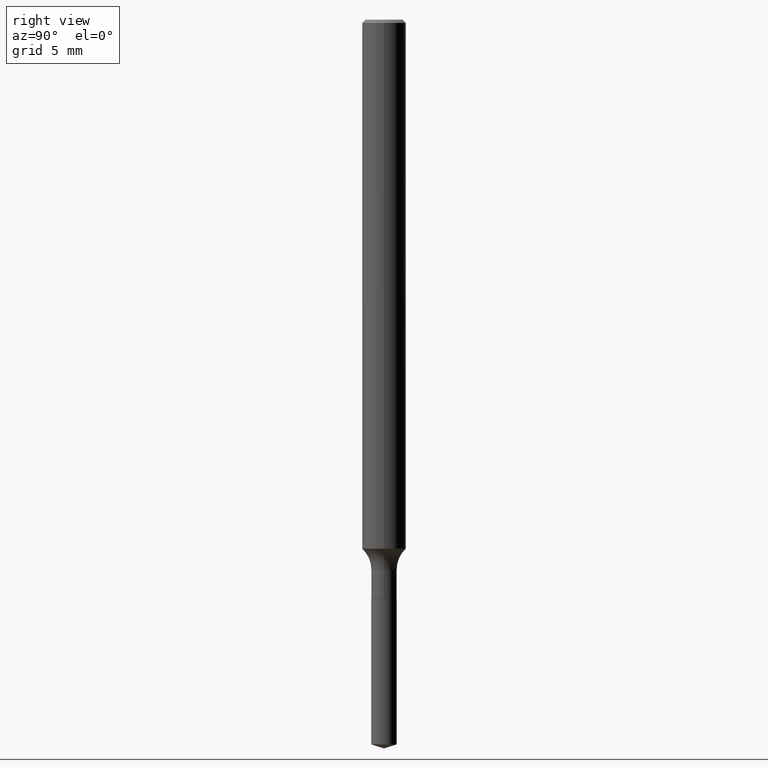
[diagram: clean part render]
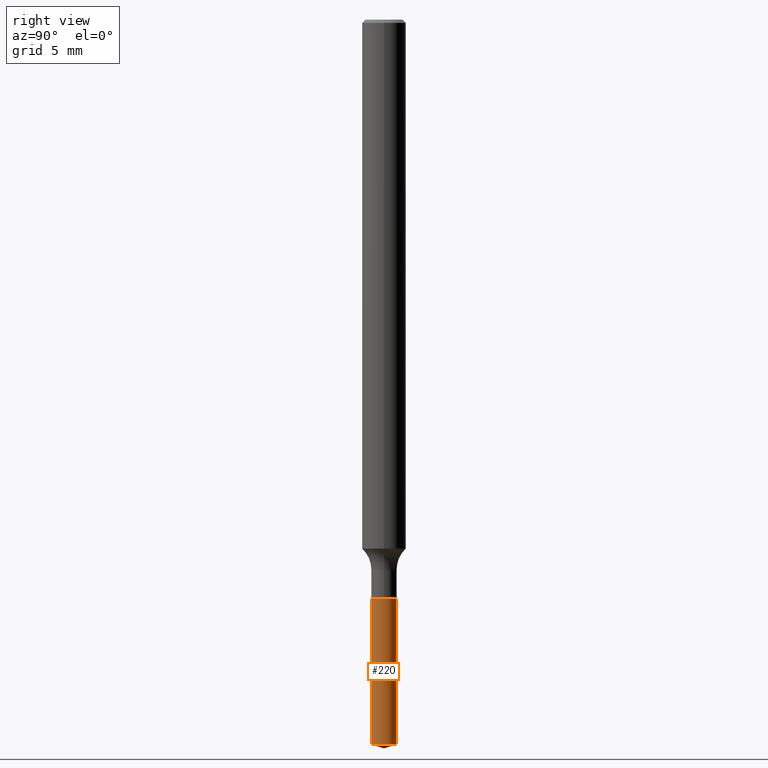
[diagram: same view with one face highlighted and labeled with its STEP entity id]
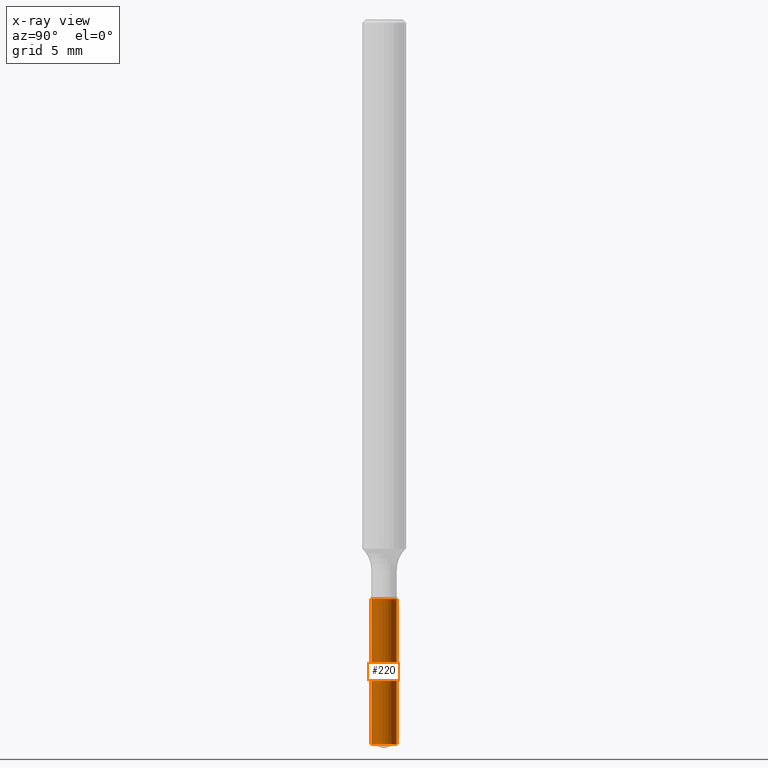
[diagram: x-ray of the same camera — body ghosted, the highlighted face saturated]
A machine part, right view. The second image highlights one B-rep face of the part: STEP entity #220.
The next image is the same camera in x-ray: the body ghosted, the highlighted face saturated — about 0% of this face is hidden behind the body in this view.
In plain terms, the highlighted cylindrical surface (edge-blend (fillet) strip) has radius 0.875 mm, axis along (-0, 0, 1).
Its self-contained STEP definition (entity closure, byte-faithful):
#9 = VECTOR ( 'NONE', #287, 39.37007874015748143 ) ;
#11 = CARTESIAN_POINT ( 'NONE',  ( 4.787417008235043521E-29, -6.834949775661315116E-15, -1.957637956723118799 ) ) ;
#18 = AXIS2_PLACEMENT_3D ( 'NONE', #156, #75, #81 ) ;
#25 = LINE ( 'NONE', #439, #9 ) ;
#30 = EDGE_CURVE ( 'NONE', #69, #360, #54, .T. ) ;
#34 = CARTESIAN_POINT ( 'NONE',  ( 2.447819724694024477E-16, 0.03444999999999454054, -1.565000000000000169 ) ) ;
#52 = DIRECTION ( 'NONE',  ( -2.445658424288464479E-29, 3.491209794926788011E-15, 1.000000000000000000 ) ) ;
#54 = CIRCLE ( 'NONE', #478, 0.03445000000000000145 ) ;
#61 = AXIS2_PLACEMENT_3D ( 'NONE', #362, #174, #65 ) ;
#65 = DIRECTION ( 'NONE',  ( -6.982962677686265922E-15, -1.000000000000000000, 0.000000000000000000 ) ) ;
#69 = VERTEX_POINT ( 'NONE', #141 ) ;
#75 = DIRECTION ( 'NONE',  ( -2.445658424288464479E-29, 3.491209794926788011E-15, 1.000000000000000000 ) ) ;
#81 = DIRECTION ( 'NONE',  ( -6.982962677686265922E-15, -1.000000000000000000, 0.000000000000000000 ) ) ;
#89 = EDGE_LOOP ( 'NONE', ( #468, #488, #423, #198 ) ) ;
#99 = CARTESIAN_POINT ( 'NONE',  ( -2.405630642462536095E-16, -0.03445000000000546930, -1.565000000000000169 ) ) ;
#101 = FACE_OUTER_BOUND ( 'NONE', #89, .T. ) ;
#130 = EDGE_CURVE ( 'NONE', #160, #405, #286, .T. ) ;
#141 = CARTESIAN_POINT ( 'NONE',  ( -2.405630642462439459E-16, -0.03445000000000683626, -1.957637956723118799 ) ) ;
#156 = CARTESIAN_POINT ( 'NONE',  ( 3.827158681679738819E-29, -5.464168295289523107E-15, -1.565000000000000169 ) ) ;
#160 = VERTEX_POINT ( 'NONE', #490 ) ;
#174 = DIRECTION ( 'NONE',  ( -2.445658424288464479E-29, 3.491209794926788011E-15, 1.000000000000000000 ) ) ;
#194 = DIRECTION ( 'NONE',  ( -6.982962677686265922E-15, -1.000000000000000000, 0.000000000000000000 ) ) ;
#198 = ORIENTED_EDGE ( 'NONE', *, *, #361, .F. ) ;
#220 = ADVANCED_FACE ( 'NONE', ( #101 ), #248, .T. ) ;
#240 = DIRECTION ( 'NONE',  ( -2.445658424288464479E-29, 3.491209794926788011E-15, 1.000000000000000000 ) ) ;
#248 = CYLINDRICAL_SURFACE ( 'NONE', #61, 0.03445000000000000145 ) ;
#286 = CIRCLE ( 'NONE', #18, 0.03445000000000000145 ) ;
#287 = DIRECTION ( 'NONE',  ( -2.445658424288464479E-29, 3.491209794926788011E-15, 1.000000000000000000 ) ) ;
#324 = EDGE_CURVE ( 'NONE', #360, #405, #25, .T. ) ;
#360 = VERTEX_POINT ( 'NONE', #399 ) ;
#361 = EDGE_CURVE ( 'NONE', #69, #160, #428, .T. ) ;
#362 = CARTESIAN_POINT ( 'NONE',  ( 3.827158681679738819E-29, -5.464168295289523107E-15, -1.565000000000000169 ) ) ;
#369 = VECTOR ( 'NONE', #240, 39.37007874015748143 ) ;
#399 = CARTESIAN_POINT ( 'NONE',  ( 2.447819724694023491E-16, 0.03444999999999315971, -1.957637956723118799 ) ) ;
#405 = VERTEX_POINT ( 'NONE', #34 ) ;
#423 = ORIENTED_EDGE ( 'NONE', *, *, #130, .F. ) ;
#428 = LINE ( 'NONE', #99, #369 ) ;
#439 = CARTESIAN_POINT ( 'NONE',  ( 2.447819724693927841E-16, 0.03444999999999454054, -1.565000000000000169 ) ) ;
#468 = ORIENTED_EDGE ( 'NONE', *, *, #30, .T. ) ;
#478 = AXIS2_PLACEMENT_3D ( 'NONE', #11, #52, #194 ) ;
#488 = ORIENTED_EDGE ( 'NONE', *, *, #324, .T. ) ;
#490 = CARTESIAN_POINT ( 'NONE',  ( -2.405630642462536095E-16, -0.03445000000000546930, -1.565000000000000169 ) ) ;